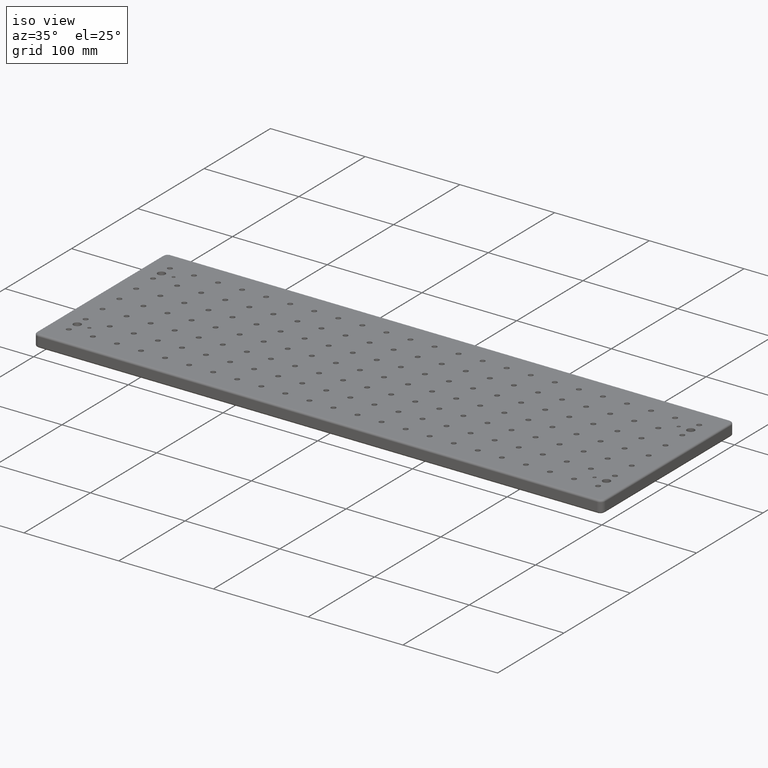
[diagram: clean part render]
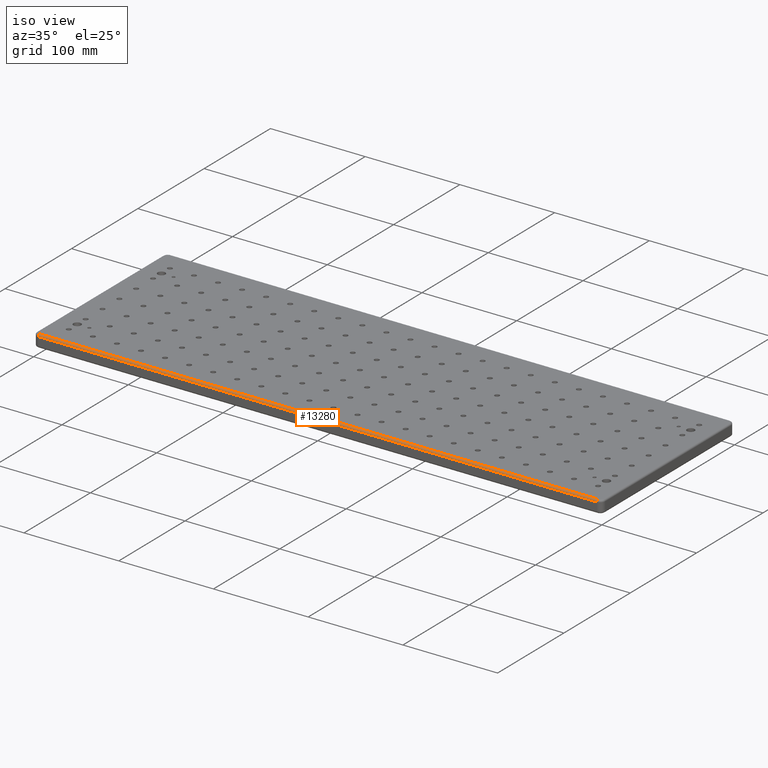
[diagram: same view with one face highlighted and labeled with its STEP entity id]
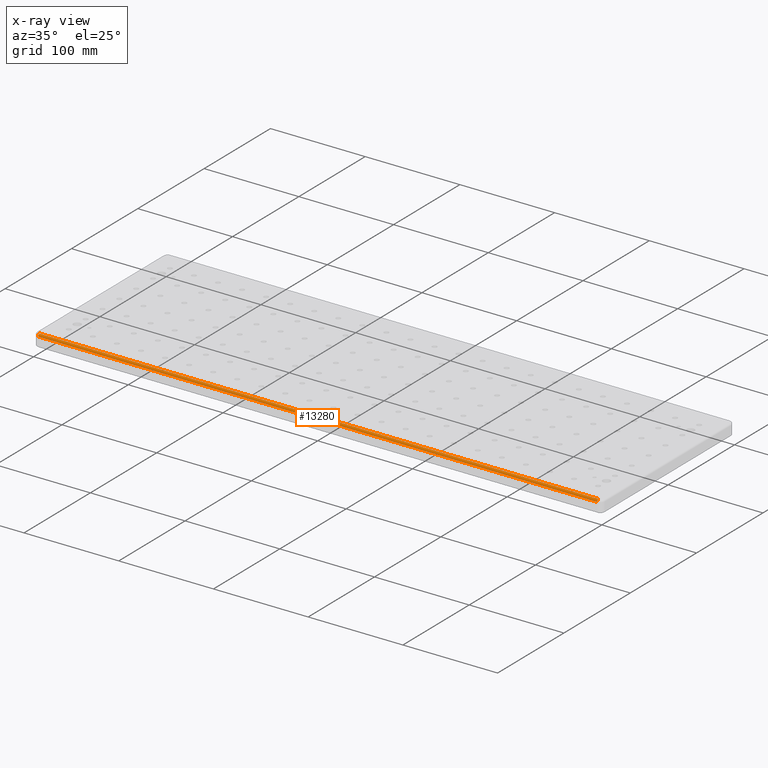
[diagram: x-ray of the same camera — body ghosted, the highlighted face saturated]
A machine part, iso view. The second image highlights one B-rep face of the part: STEP entity #13280.
The next image is the same camera in x-ray: the body ghosted, the highlighted face saturated — about 0% of this face is hidden behind the body in this view.
In plain terms, the highlighted cylindrical surface (edge-blend (fillet) strip) has radius 2 mm, axis along (-1, 0, 0).
Its self-contained STEP definition (entity closure, byte-faithful):
#445 = AXIS2_PLACEMENT_3D ( 'NONE', #4139, #2128, #7365 ) ;
#664 = CIRCLE ( 'NONE', #8894, 2.000000000000000000 ) ;
#810 = DIRECTION ( 'NONE',  ( 1.000000000000000000, 0.0000000000000000000, -0.0000000000000000000 ) ) ;
#869 = CARTESIAN_POINT ( 'NONE',  ( 295.0000000000001700, -100.0000000000000700, -2.000000000000003600 ) ) ;
#877 = VERTEX_POINT ( 'NONE', #11091 ) ;
#1281 = ORIENTED_EDGE ( 'NONE', *, *, #9736, .F. ) ;
#1922 = VERTEX_POINT ( 'NONE', #869 ) ;
#1974 = CARTESIAN_POINT ( 'NONE',  ( -295.0000000000001700, -100.0000000000000000, -2.000000000000001800 ) ) ;
#2128 = DIRECTION ( 'NONE',  ( 1.000000000000000000, 0.0000000000000000000, -0.0000000000000000000 ) ) ;
#2594 = EDGE_CURVE ( 'NONE', #877, #8098, #7306, .T. ) ;
#2739 = DIRECTION ( 'NONE',  ( 1.000000000000000000, -1.176083712526648200E-016, 0.0000000000000000000 ) ) ;
#3498 = CARTESIAN_POINT ( 'NONE',  ( -295.0000000000001700, -98.00000000000000000, -2.000000000000000000 ) ) ;
#4139 = CARTESIAN_POINT ( 'NONE',  ( -295.0000000000001700, -98.00000000000000000, -2.000000000000000000 ) ) ;
#4175 = ORIENTED_EDGE ( 'NONE', *, *, #8485, .F. ) ;
#4524 = ORIENTED_EDGE ( 'NONE', *, *, #5106, .F. ) ;
#5106 = EDGE_CURVE ( 'NONE', #5992, #1922, #664, .T. ) ;
#5895 = CARTESIAN_POINT ( 'NONE',  ( 295.0000000000001700, -98.00000000000007100, 0.0000000000000000000 ) ) ;
#5992 = VERTEX_POINT ( 'NONE', #10827 ) ;
#6420 = FACE_OUTER_BOUND ( 'NONE', #7389, .T. ) ;
#6463 = DIRECTION ( 'NONE',  ( -1.000000000000000000, 1.176083712526648200E-016, -0.0000000000000000000 ) ) ;
#6818 = DIRECTION ( 'NONE',  ( 0.0000000000000000000, -1.000000000000000000, 0.0000000000000000000 ) ) ;
#7300 = LINE ( 'NONE', #5895, #12890 ) ;
#7306 = CIRCLE ( 'NONE', #445, 2.000000000000000000 ) ;
#7365 = DIRECTION ( 'NONE',  ( 0.0000000000000000000, 0.0000000000000000000, -1.000000000000000000 ) ) ;
#7389 = EDGE_LOOP ( 'NONE', ( #9726, #1281, #4524, #4175 ) ) ;
#8098 = VERTEX_POINT ( 'NONE', #1974 ) ;
#8485 = EDGE_CURVE ( 'NONE', #877, #5992, #7300, .T. ) ;
#8876 = AXIS2_PLACEMENT_3D ( 'NONE', #3498, #9917, #6818 ) ;
#8894 = AXIS2_PLACEMENT_3D ( 'NONE', #11168, #810, #11215 ) ;
#9726 = ORIENTED_EDGE ( 'NONE', *, *, #2594, .T. ) ;
#9736 = EDGE_CURVE ( 'NONE', #1922, #8098, #11331, .T. ) ;
#9917 = DIRECTION ( 'NONE',  ( -1.000000000000000000, 1.176083712526648200E-016, 0.0000000000000000000 ) ) ;
#10606 = CARTESIAN_POINT ( 'NONE',  ( -295.0000000000001700, -100.0000000000000000, -2.000000000000000000 ) ) ;
#10827 = CARTESIAN_POINT ( 'NONE',  ( 295.0000000000001700, -98.00000000000007100, 0.0000000000000000000 ) ) ;
#11091 = CARTESIAN_POINT ( 'NONE',  ( -295.0000000000001700, -98.00000000000000000, 0.0000000000000000000 ) ) ;
#11168 = CARTESIAN_POINT ( 'NONE',  ( 295.0000000000001700, -98.00000000000007100, -2.000000000000000000 ) ) ;
#11215 = DIRECTION ( 'NONE',  ( 0.0000000000000000000, 0.0000000000000000000, -1.000000000000000000 ) ) ;
#11331 = LINE ( 'NONE', #10606, #11649 ) ;
#11649 = VECTOR ( 'NONE', #6463, 1000.000000000000000 ) ;
#12841 = CYLINDRICAL_SURFACE ( 'NONE', #8876, 2.000000000000001800 ) ;
#12890 = VECTOR ( 'NONE', #2739, 1000.000000000000000 ) ;
#13280 = ADVANCED_FACE ( 'NONE', ( #6420 ), #12841, .T. ) ;